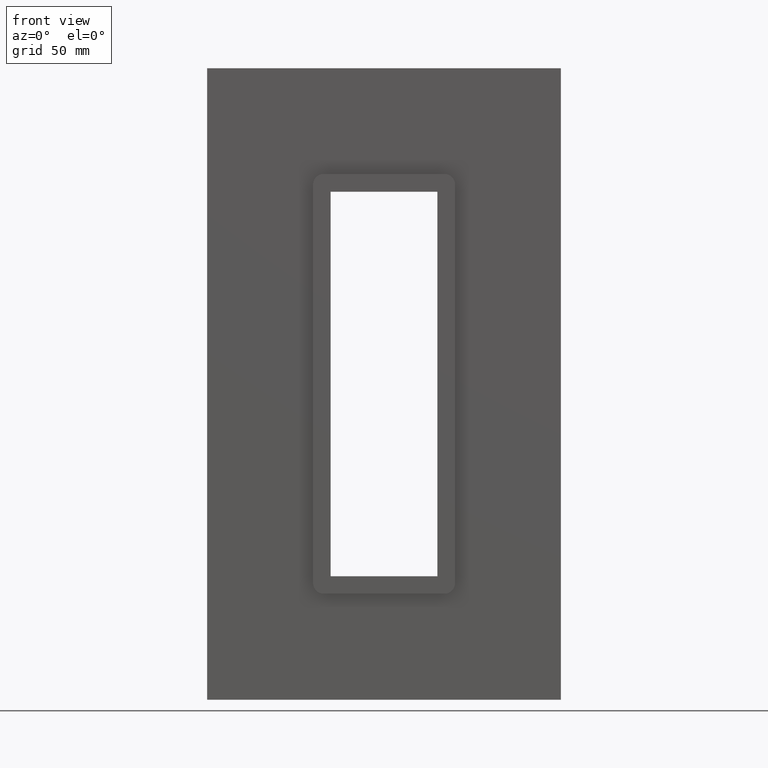
[diagram: clean part render]
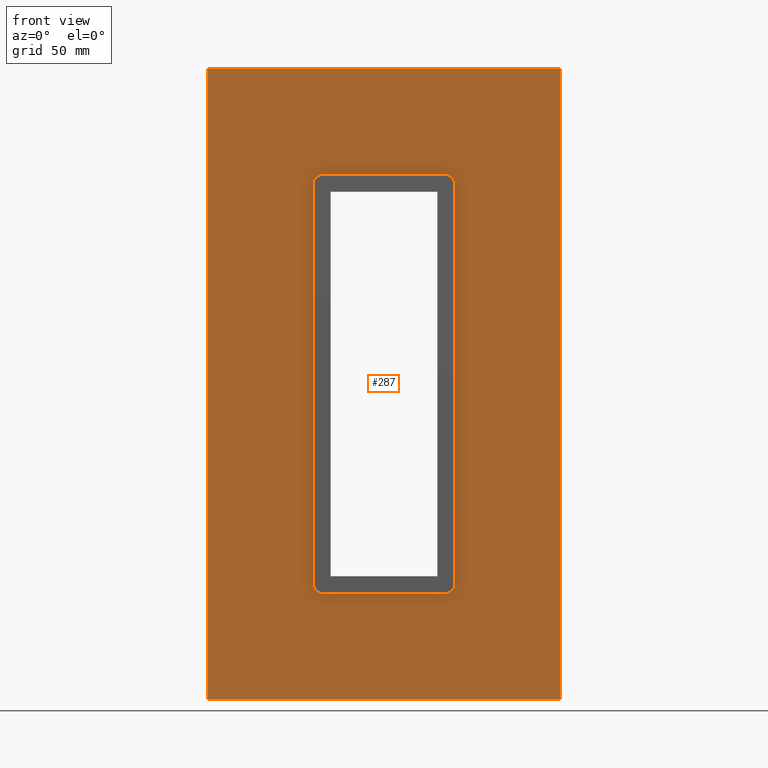
[diagram: same view with one face highlighted and labeled with its STEP entity id]
A machine part, front view. The second image highlights one B-rep face of the part: STEP entity #287.
In plain terms, the highlighted planar face has unit normal (0, 1, 0).
Its self-contained STEP definition (entity closure, byte-faithful):
#178=CARTESIAN_POINT('',(-1.145011E-014,0.0,1.526681E-014));
#179=DIRECTION('',(0.0,1.0,0.0));
#180=DIRECTION('',(0.0,0.0,1.0));
#181=AXIS2_PLACEMENT_3D('',#178,#179,#180);
#182=PLANE('',#181);
#183=CARTESIAN_POINT('',(100.25000000000003,0.0,-178.99999999999994));
#184=VERTEX_POINT('',#183);
#185=CARTESIAN_POINT('',(-100.25000000000004,0.0,-178.99999999999994));
#186=VERTEX_POINT('',#185);
#187=CARTESIAN_POINT('',(100.25000000000003,0.0,-178.99999999999994));
#188=DIRECTION('',(-1.0,0.0,0.0));
#189=VECTOR('',#188,200.50000000000006);
#190=LINE('',#187,#189);
#191=EDGE_CURVE('',#184,#186,#190,.T.);
#192=ORIENTED_EDGE('',*,*,#191,.F.);
#193=CARTESIAN_POINT('',(100.25000000000003,0.0,179.0));
#194=VERTEX_POINT('',#193);
#195=CARTESIAN_POINT('',(100.25000000000003,0.0,179.0));
#196=DIRECTION('',(0.0,0.0,-1.0));
#197=VECTOR('',#196,358.0);
#198=LINE('',#195,#197);
#199=EDGE_CURVE('',#194,#184,#198,.T.);
#200=ORIENTED_EDGE('',*,*,#199,.F.);
#201=CARTESIAN_POINT('',(-100.25000000000004,0.0,179.0));
#202=VERTEX_POINT('',#201);
#203=CARTESIAN_POINT('',(-100.25000000000004,0.0,179.0));
#204=DIRECTION('',(1.0,0.0,0.0));
#205=VECTOR('',#204,200.50000000000006);
#206=LINE('',#203,#205);
#207=EDGE_CURVE('',#202,#194,#206,.T.);
#208=ORIENTED_EDGE('',*,*,#207,.F.);
#209=CARTESIAN_POINT('',(-100.25000000000004,0.0,-178.99999999999994));
#210=DIRECTION('',(0.0,0.0,1.0));
#211=VECTOR('',#210,358.0);
#212=LINE('',#209,#211);
#213=EDGE_CURVE('',#186,#202,#212,.T.);
#214=ORIENTED_EDGE('',*,*,#213,.F.);
#215=EDGE_LOOP('',(#192,#200,#208,#214));
#216=FACE_OUTER_BOUND('',#215,.T.);
#217=CARTESIAN_POINT('',(40.249999999999986,0.0,113.0));
#218=VERTEX_POINT('',#217);
#219=CARTESIAN_POINT('',(34.250000000000043,0.0,118.99999999999999));
#220=VERTEX_POINT('',#219);
#221=CARTESIAN_POINT('',(34.250000000000043,0.0,113.0));
#222=DIRECTION('',(0.0,-1.0,0.0));
#223=DIRECTION('',(0.0,0.0,1.0));
#224=AXIS2_PLACEMENT_3D('',#221,#222,#223);
#225=CIRCLE('',#224,6.000000000000014);
#226=EDGE_CURVE('',#218,#220,#225,.T.);
#227=ORIENTED_EDGE('',*,*,#226,.F.);
#228=CARTESIAN_POINT('',(40.249999999999986,0.0,-113.0));
#229=VERTEX_POINT('',#228);
#230=CARTESIAN_POINT('',(40.249999999999986,0.0,-113.00000000000001));
#231=DIRECTION('',(0.0,0.0,1.0));
#232=VECTOR('',#231,226.0);
#233=LINE('',#230,#232);
#234=EDGE_CURVE('',#229,#218,#233,.T.);
#235=ORIENTED_EDGE('',*,*,#234,.F.);
#236=CARTESIAN_POINT('',(34.250000000000043,0.0,-119.00000000000003));
#237=VERTEX_POINT('',#236);
#238=CARTESIAN_POINT('',(34.250000000000043,0.0,-113.0));
#239=DIRECTION('',(0.0,-1.0,0.0));
#240=DIRECTION('',(1.0,0.0,0.0));
#241=AXIS2_PLACEMENT_3D('',#238,#239,#240);
#242=CIRCLE('',#241,6.000000000000014);
#243=EDGE_CURVE('',#237,#229,#242,.T.);
#244=ORIENTED_EDGE('',*,*,#243,.F.);
#245=CARTESIAN_POINT('',(-34.250000000000043,0.0,-119.00000000000003));
#246=VERTEX_POINT('',#245);
#247=CARTESIAN_POINT('',(-34.250000000000043,0.0,-119.00000000000003));
#248=DIRECTION('',(1.0,0.0,0.0));
#249=VECTOR('',#248,68.500000000000085);
#250=LINE('',#247,#249);
#251=EDGE_CURVE('',#246,#237,#250,.T.);
#252=ORIENTED_EDGE('',*,*,#251,.F.);
#253=CARTESIAN_POINT('',(-40.250000000000021,0.0,-113.0));
#254=VERTEX_POINT('',#253);
#255=CARTESIAN_POINT('',(-34.250000000000043,0.0,-113.0));
#256=DIRECTION('',(0.0,-1.0,0.0));
#257=DIRECTION('',(0.0,0.0,-1.0));
#258=AXIS2_PLACEMENT_3D('',#255,#256,#257);
#259=CIRCLE('',#258,6.000000000000014);
#260=EDGE_CURVE('',#254,#246,#259,.T.);
#261=ORIENTED_EDGE('',*,*,#260,.F.);
#262=CARTESIAN_POINT('',(-40.250000000000021,0.0,113.0));
#263=VERTEX_POINT('',#262);
#264=CARTESIAN_POINT('',(-40.250000000000021,0.0,113.0));
#265=DIRECTION('',(0.0,0.0,-1.0));
#266=VECTOR('',#265,226.0);
#267=LINE('',#264,#266);
#268=EDGE_CURVE('',#263,#254,#267,.T.);
#269=ORIENTED_EDGE('',*,*,#268,.F.);
#270=CARTESIAN_POINT('',(-34.250000000000043,0.0,118.99999999999999));
#271=VERTEX_POINT('',#270);
#272=CARTESIAN_POINT('',(-34.250000000000043,0.0,113.0));
#273=DIRECTION('',(0.0,-1.0,0.0));
#274=DIRECTION('',(-1.0,0.0,0.0));
#275=AXIS2_PLACEMENT_3D('',#272,#273,#274);
#276=CIRCLE('',#275,6.000000000000014);
#277=EDGE_CURVE('',#271,#263,#276,.T.);
#278=ORIENTED_EDGE('',*,*,#277,.F.);
#279=CARTESIAN_POINT('',(34.250000000000043,0.0,118.99999999999999));
#280=DIRECTION('',(-1.0,0.0,0.0));
#281=VECTOR('',#280,68.500000000000085);
#282=LINE('',#279,#281);
#283=EDGE_CURVE('',#220,#271,#282,.T.);
#284=ORIENTED_EDGE('',*,*,#283,.F.);
#285=EDGE_LOOP('',(#227,#235,#244,#252,#261,#269,#278,#284));
#286=FACE_BOUND('',#285,.T.);
#287=ADVANCED_FACE('',(#216,#286),#182,.F.);